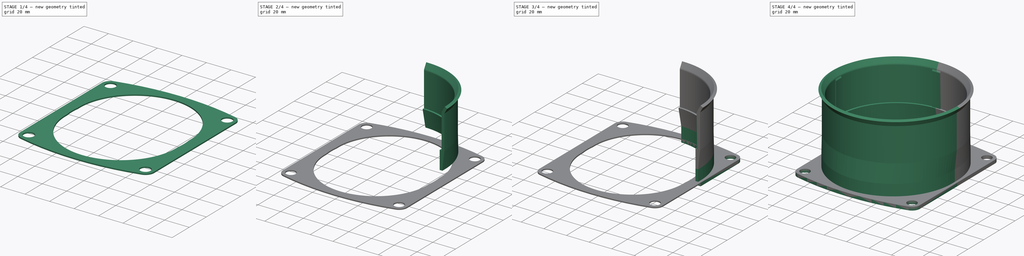
[diagram: build sequence overview — one tinted view per stage of 4, left to right]
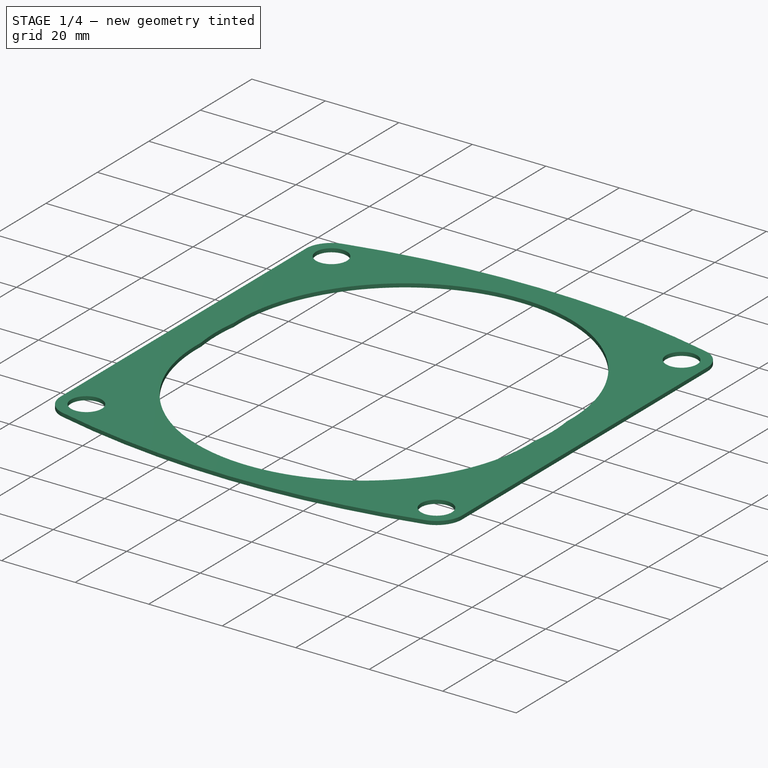
[diagram: stage 1 of 4 — iso view after this stage's code; geometry added in this stage tinted green]
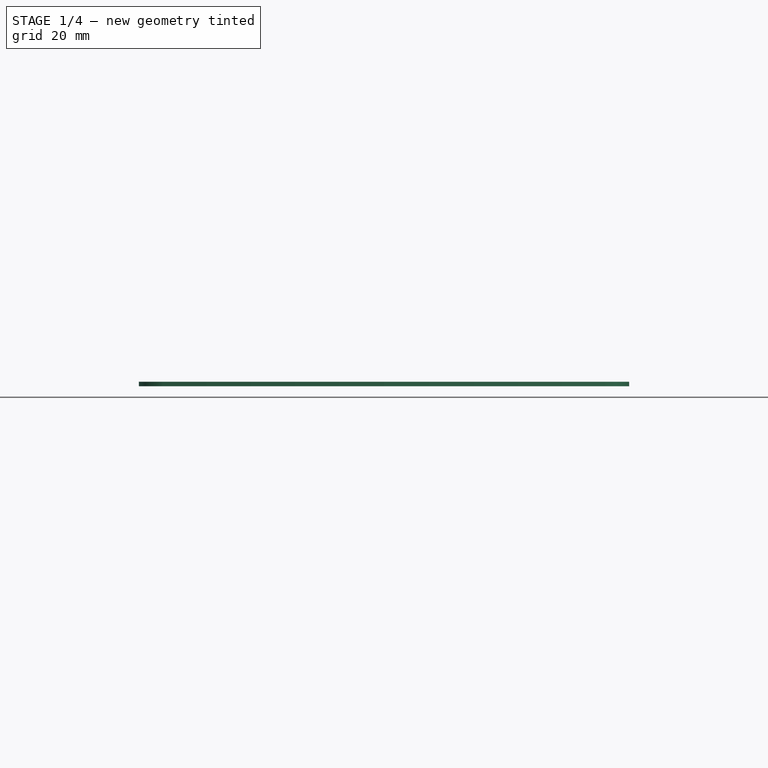
[diagram: stage 1 of 4 — front view after this stage's code; geometry added in this stage tinted green]
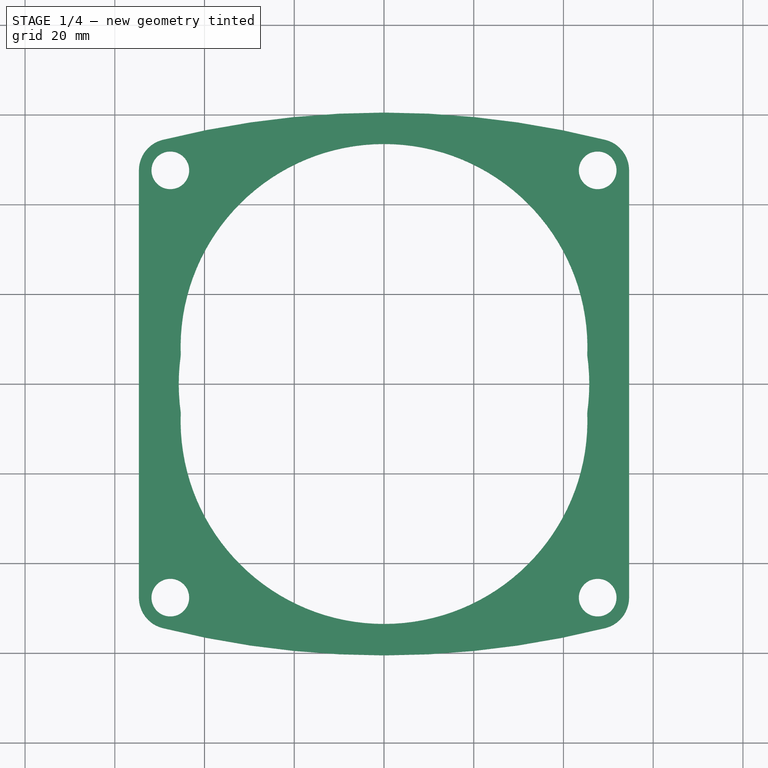
[diagram: stage 1 of 4 — top view after this stage's code; geometry added in this stage tinted green]
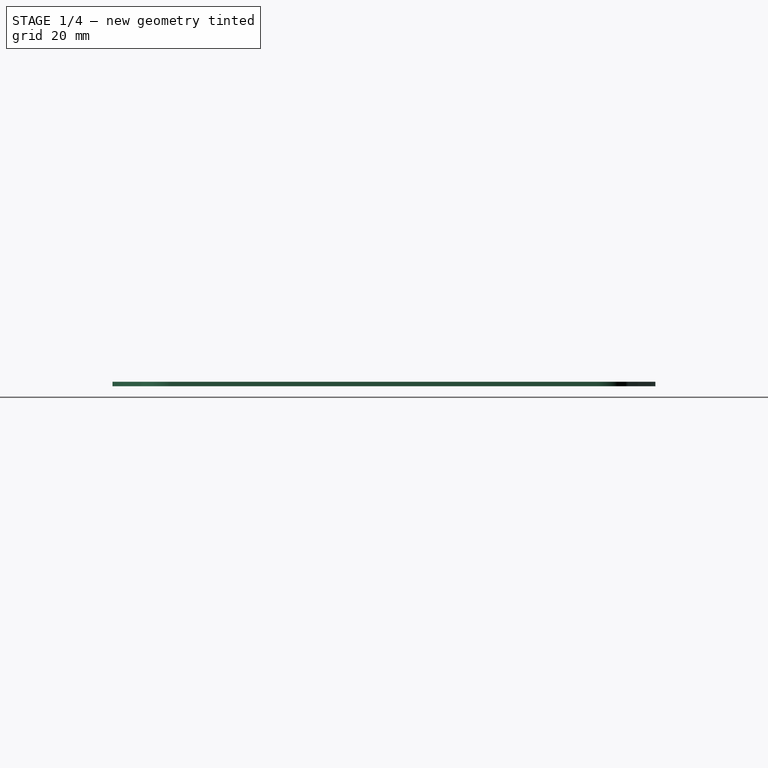
[diagram: stage 1 of 4 — right view after this stage's code; geometry added in this stage tinted green]
FCSTD DOCUMENT  (FreeCAD 0.19R24291 (Git))
Label: Фланец крышек2
License: All rights reserved
LicenseURL: http://en.wikipedia.org/wiki/All_rights_reserved
objects: Sketcher::SketchObject×8, PartDesign::Mirrored×5, PartDesign::Pad×3, PartDesign::MultiTransform×3, PartDesign::Revolution×2, PartDesign::Body×2, Spreadsheet::Sheet×1, PartDesign::AdditiveLoft×1, PartDesign::PolarPattern×1, App::Part×1
note: 31 computed .brp shape members not serialized (recipe doc carries the construction recipe); baked Part::Feature solids carry a one-line shape summary decoded from their .brp

FEATURE [Sketcher::SketchObject] Sketch006
  FullyConstrained = false
  MapMode = 5
  Placement = pos=(0,0,0) rot=(1,0,0;1.5708rad)
  Support = -> [XZ_Plane]
  sketch-geometry (4):
    g0: LineSegment StartX=69.1347 StartY=74.9252 StartZ=0 EndX=-65.0684 EndY=74.9252 EndZ=0
    g1: LineSegment StartX=-65.0684 StartY=74.9252 StartZ=0 EndX=-65.0684 EndY=-1 EndZ=0
    g2: LineSegment StartX=-65.0684 StartY=-1 StartZ=0 EndX=69.1347 EndY=-1 EndZ=0
    g3: LineSegment StartX=69.1347 StartY=-1 StartZ=0 EndX=69.1347 EndY=74.9252 EndZ=0
  constraints (9):
    c: Coincident(g0,g1)
    c: Coincident(g1,g2)
    c: Coincident(g2,g3)
    c: Coincident(g3,g0)
    c: Horizontal(g0)
    c: Horizontal(g2)
    c: Vertical(g1)
    c: Vertical(g3)
    c: Distance(g2,g-1) = 1
FEATURE [PartDesign::Body] Body
  Group = -> [Sketch,Sketch001,Sketch002,Sketch003,Revolution,Sketch004,AdditiveLoft,Pad,Sketch005,Revolution001,Pad001,MultiTransform,Mirrored,Mirrored001,MultiTransform001,Mirrored002,PolarPattern,Sketch006]
  Origin = -> Origin
  Tip = -> MultiTransform001
FEATURE [App::Part] Part
  Group = -> [Spreadsheet,Body]
  Origin = -> Origin001
FEATURE [Sketcher::SketchObject] Sketch007
  FullyConstrained = true
  MapMode = 5
  Placement = pos=(0,0,0) rot=(0,1,0;3.14159rad)
  Support = -> [XY_Plane002]
  sketch-geometry (8):
    g0: ArcOfCircle CenterX=0 CenterY=0 CenterZ=0 NormalX=0 NormalY=0 NormalZ=1 AngleXU=0 Radius=45.75 StartAngle=0 EndAngle=0.14002
    g1: ArcOfCircle CenterX=0 CenterY=8.16287 CenterZ=0 NormalX=0 NormalY=0 NormalZ=1 AngleXU=0 Radius=45.3371 StartAngle=6.24396 EndAngle=7.85398
    g2: ArcOfCircle CenterX=0 CenterY=-142.471 CenterZ=0 NormalX=0 NormalY=0 NormalZ=1 AngleXU=0 Radius=202.971 StartAngle=1.32532 EndAngle=1.5708
    g3: Circle CenterX=47.625 CenterY=47.625 CenterZ=0 NormalX=0 NormalY=0 NormalZ=1 AngleXU=0 Radius=4.2
    g4: ArcOfCircle CenterX=47.625 CenterY=47.625 CenterZ=0 NormalX=0 NormalY=0 NormalZ=1 AngleXU=0 Radius=7 StartAngle=6.28318 EndAngle=7.6085
    g5: LineSegment StartX=54.625 StartY=47.625 StartZ=0 EndX=54.625 EndY=0 EndZ=0
    g6: LineSegment StartX=54.625 StartY=0 StartZ=0 EndX=45.75 EndY=0 EndZ=0
    g7: LineSegment StartX=1.39e-14 StartY=53.5 StartZ=0 EndX=0 EndY=60.5 EndZ=0
  constraints (26):
    c: Coincident(g0,g-1)
    c: PointOnObject(g0,g-1)
    c: PointOnObject(g1,g-2)
    c: Coincident(g1,g0)
    c: PointOnObject(g1,g-2)
    c: Diameter(g0) = 91.5
    c: Distance(g0,g-1) = 6.385
    c: Distance(g0,g1) = 53.5
    c: PointOnObject(g2,g-2)
    c: PointOnObject(g2,g-2)
    c: DistanceX(g3) = 47.625
    c: DistanceY(g3) = 47.625
    c: Diameter(g3) = 8.4
    c: Distance(g2,g0) = 60.5
    c: Coincident(g4,g3)
    c: Coincident(g4,g2)
    c: Coincident(g5,g4)
    c: PointOnObject(g5,g-1)
    c: Vertical(g5)
    c: Coincident(g6,g5)
    c: Coincident(g6,g0)
    c: Diameter(g4) = 14
    c: Tangent(g4,g2)
    c: Tangent(g4,g5)
    c: Coincident(g7,g1)
    c: Coincident(g7,g2)
FEATURE [PartDesign::Pad] Pad002
  Direction = (1,1,1)
  Length = 1
  Length2 = 100
  Profile = -> Sketch007
  Type = 0
FEATURE [PartDesign::Mirrored] Mirrored003
  MirrorPlane = -> Sketch007 [V_Axis]
FEATURE [PartDesign::Mirrored] Mirrored004
  MirrorPlane = -> Sketch007 [H_Axis]
FEATURE [PartDesign::MultiTransform] MultiTransform002
  BaseFeature = -> Pad002
  Originals = -> [Pad002]
  Transformations = -> [Mirrored003,Mirrored004]
FEATURE [PartDesign::Body] Body001
  Group = -> [Sketch007,Pad002,MultiTransform002,Mirrored003,Mirrored004]
  Origin = -> Origin002
  Tip = -> MultiTransform002
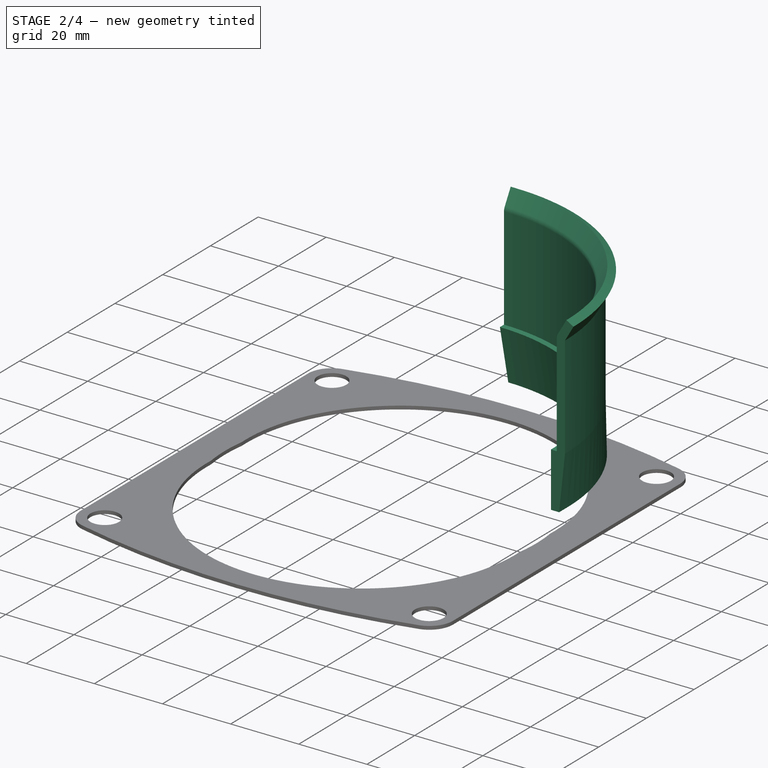
[diagram: stage 2 of 4 — iso view after this stage's code; geometry added in this stage tinted green]
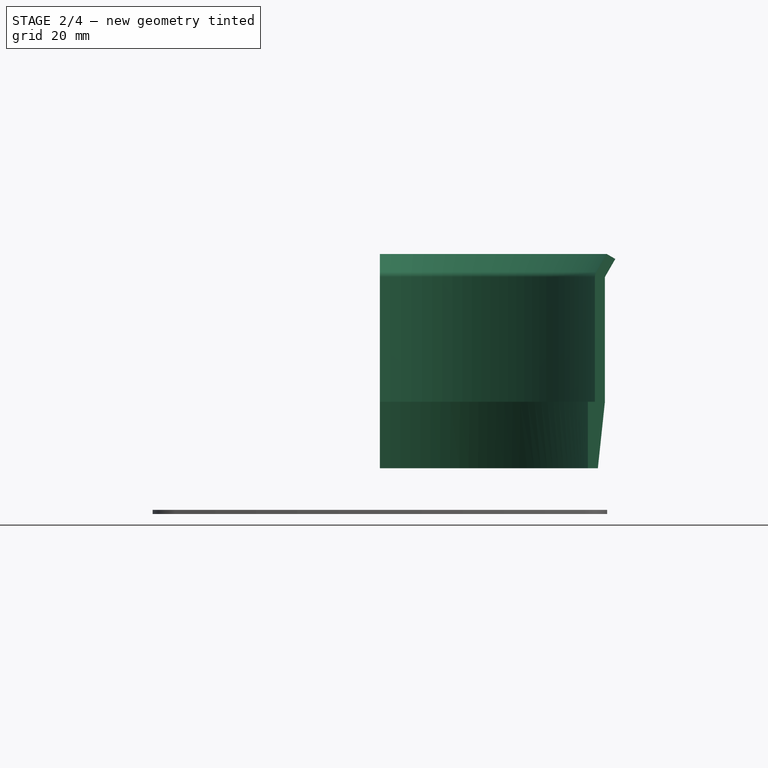
[diagram: stage 2 of 4 — front view after this stage's code; geometry added in this stage tinted green]
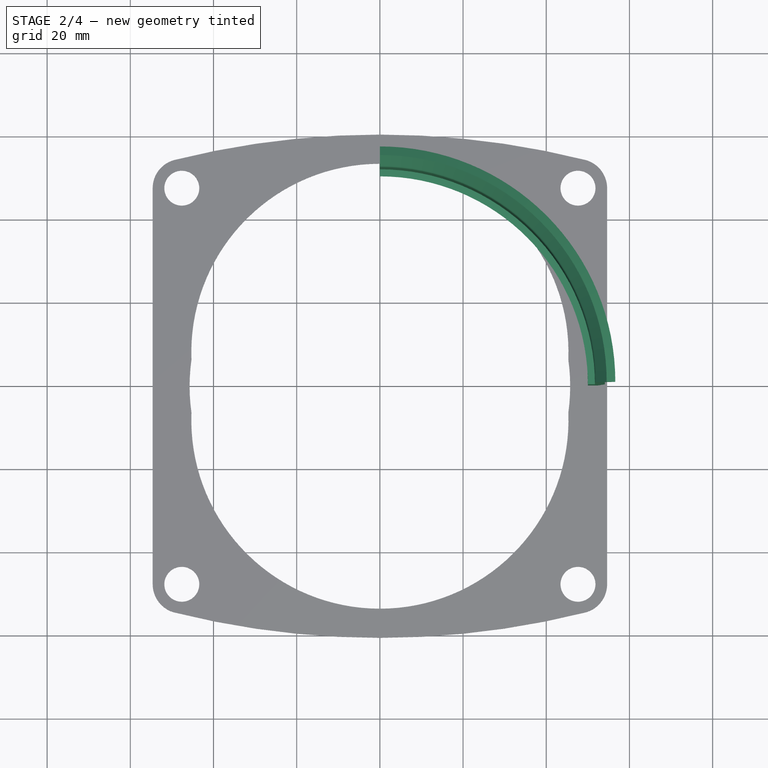
[diagram: stage 2 of 4 — top view after this stage's code; geometry added in this stage tinted green]
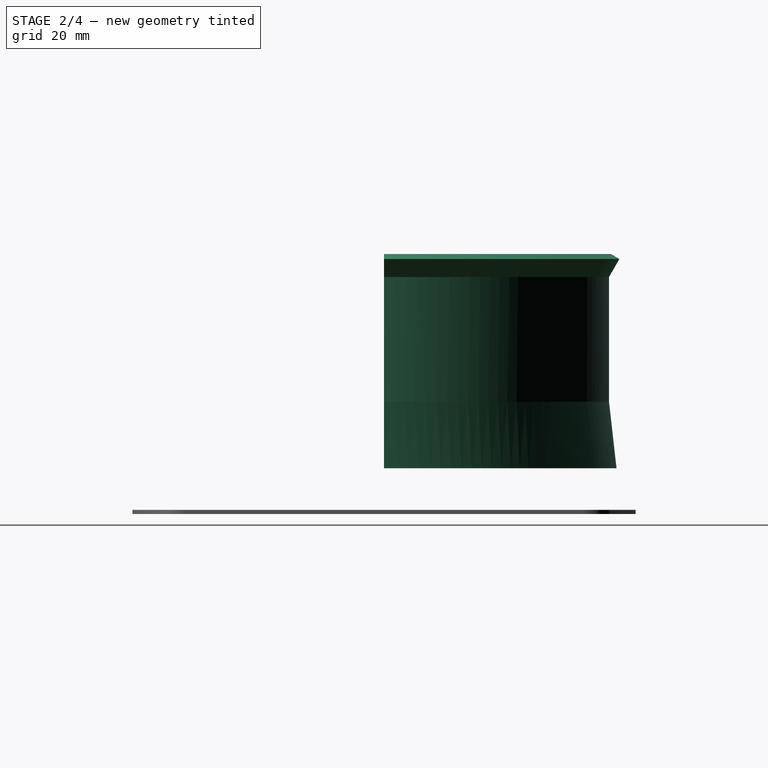
[diagram: stage 2 of 4 — right view after this stage's code; geometry added in this stage tinted green]
FEATURE [Sketcher::SketchObject] Sketch
  FullyConstrained = false
  MapMode = 5
  Support = -> [XY_Plane]
  expr: Constraints[12] = Spreadsheet.oval_d1 / 2
  sketch-geometry (9):
    g0: LineSegment StartX=0 StartY=0 StartZ=0 EndX=47.1343 EndY=47.1343 EndZ=0
    g1: Circle CenterX=47.625 CenterY=47.625 CenterZ=0 NormalX=0 NormalY=0 NormalZ=1 AngleXU=0 Radius=4.2
    g2: ArcOfCircle CenterX=0 CenterY=0 CenterZ=0 NormalX=0 NormalY=0 NormalZ=1 AngleXU=0 Radius=45.25 StartAngle=0 EndAngle=0.279883
    g3: ArcOfCircle CenterX=0 CenterY=9.93521 CenterZ=0 NormalX=0 NormalY=0 NormalZ=1 AngleXU=0 Radius=43.5648 StartAngle=0.058907 EndAngle=1.5708
    g4: ArcOfCircle CenterX=47.625 CenterY=47.625 CenterZ=0 NormalX=0 NormalY=0 NormalZ=1 AngleXU=0 Radius=7 StartAngle=6.28319 EndAngle=7.6085
    g5: ArcOfCircle CenterX=0 CenterY=-142.471 CenterZ=0 NormalX=0 NormalY=0 NormalZ=1 AngleXU=0 Radius=202.971 StartAngle=1.32532 EndAngle=1.5708
    g6: LineSegment StartX=54.625 StartY=47.625 StartZ=0 EndX=54.625 EndY=0 EndZ=0
    g7: LineSegment StartX=45.25 StartY=0 StartZ=0 EndX=54.625 EndY=0 EndZ=0
    g8: LineSegment StartX=0 StartY=53.5 StartZ=0 EndX=0 EndY=60.5 EndZ=0
  constraints (28):
    c: Coincident(g0,g-1)
    c: Angle(g-1,g0) = 0.785398
    c: PointOnObject(g1,g0)
    c: Diameter(g1) = 8.4
    c: DistanceY(g-1,g1) = 47.625
    c: Coincident(g2,g-1)
    c: PointOnObject(g2,g-1)
    c: Diameter(g2) = 90.5
    c: DistanceY(g2,g2) = 12.5
    c: PointOnObject(g3,g-2)
    c: Coincident(g3,g2)
    c: PointOnObject(g3,g-2)
    c: Distance(g2,g3) = 53.5
    c: Coincident(g4,g1)
    c: PointOnObject(g5,g-2)
    c: Coincident(g5,g4)
    c: PointOnObject(g5,g-2)
    c: Tangent(g5,g4)
    c: Coincident(g6,g4)
    c: PointOnObject(g6,g-1)
    c: Vertical(g6)
    c: Coincident(g7,g2)
    c: Coincident(g7,g6)
    c: Coincident(g8,g3)
    c: Coincident(g8,g5)
    c: Tangent(g4,g6)
    c: Diameter(g4) = 14
    c: Distance(g8) = 7
FEATURE [Spreadsheet::Sheet] Spreadsheet
  cells = A1=Труба; B1(tube_outer_radius)=102; C1(tube_inner_radius)=100; D1(tube_height)=30; B2=Внешний диаметр; C2=Внутренний диаметр; D2=Высота; A3=Выступы; B3(ledge_width)=4; C3(ledge_length)=0.7; B4=Ширина; C4=Длина; A5=Овал; B5(oval_d1)=107; C5(oval_d2)=100; D5(oval_transitoin_height)=15; E5(oval_height)=10; B6=диаметр1; C6=диаметр2; D6=Высота пeрехода; E6=Высота; A15=Общее; B15(wallThickness)=2.4; B16=Толщина стенки
FEATURE [Sketcher::SketchObject] Sketch001
  AttachmentOffset = pos=(0,0,10) rot=(0,0,1;0rad)
  FullyConstrained = true
  MapMode = 5
  Placement = pos=(0,0,10) rot=(0,0,1;0rad)
  Support = -> [XY_Plane]
  expr: Constraints[16] = Spreadsheet.wallThickness
  expr: Constraints[17] = Spreadsheet.oval_d2
  expr: Constraints[18] = Spreadsheet.oval_d1 / 2
  expr: .AttachmentOffset.Base.z = Spreadsheet.oval_height
  sketch-geometry (6):
    g0: ArcOfCircle CenterX=0 CenterY=3.5 CenterZ=0 NormalX=0 NormalY=0 NormalZ=1 AngleXU=0 Radius=52.4 StartAngle=1.87457e-06 EndAngle=1.5708
    g1: ArcOfCircle CenterX=0 CenterY=3.5 CenterZ=0 NormalX=0 NormalY=0 NormalZ=1 AngleXU=0 Radius=50 StartAngle=1.78708e-06 EndAngle=1.5708
    g2: LineSegment StartX=0 StartY=53.5 StartZ=0 EndX=0 EndY=55.9 EndZ=0
    g3: LineSegment StartX=50 StartY=0 StartZ=0 EndX=50 EndY=3.50009 EndZ=0
    g4: LineSegment StartX=52.4 StartY=0 StartZ=0 EndX=52.4 EndY=3.5001 EndZ=0
    g5: LineSegment StartX=50 StartY=0 StartZ=0 EndX=52.4 EndY=0 EndZ=0
  constraints (19):
    c: PointOnObject(g0,g-2)
    c: PointOnObject(g0,g-2)
    c: Coincident(g1,g0)
    c: PointOnObject(g1,g-2)
    c: Coincident(g2,g1)
    c: Coincident(g2,g0)
    c: PointOnObject(g3,g-1)
    c: Coincident(g3,g1)
    c: Vertical(g3)
    c: PointOnObject(g4,g-1)
    c: Coincident(g4,g0)
    c: Vertical(g4)
    c: Tangent(g0,g4)
    c: Tangent(g1,g3)
    c: Coincident(g5,g3)
    c: Coincident(g5,g4)
    c: Distance(g2) = 2.4
    c: Diameter(g1) = 100
    c: Distance(g-1,g1) = 53.5
FEATURE [Sketcher::SketchObject] Sketch002
  AttachmentOffset = pos=(0,0,25) rot=(0,0,1;0rad)
  FullyConstrained = false
  MapMode = 5
  Placement = pos=(0,0,25) rot=(0,0,1;0rad)
  Support = -> [XY_Plane]
  expr: Constraints[4] = Spreadsheet.wallThickness
  expr: .AttachmentOffset.Base.z = Spreadsheet.oval_height + Spreadsheet.oval_transitoin_height
  expr: Constraints[15] = Spreadsheet.oval_d2
  sketch-geometry (6):
    g0: LineSegment StartX=50 StartY=0 StartZ=0 EndX=52.4 EndY=0 EndZ=0
    g1: LineSegment StartX=3.1e-15 StartY=50 StartZ=0 EndX=3.2e-15 EndY=52.4 EndZ=0
    g2: ArcOfCircle CenterX=0 CenterY=0 CenterZ=0 NormalX=0 NormalY=0 NormalZ=1 AngleXU=0 Radius=50 StartAngle=0.089707 EndAngle=1.5708
    g3: ArcOfCircle CenterX=0 CenterY=0 CenterZ=0 NormalX=0 NormalY=0 NormalZ=1 AngleXU=0 Radius=50 StartAngle=0 EndAngle=0.089707
    g4: ArcOfCircle CenterX=0 CenterY=0 CenterZ=0 NormalX=0 NormalY=0 NormalZ=1 AngleXU=0 Radius=52.4 StartAngle=0.085625 EndAngle=1.5708
    g5: ArcOfCircle CenterX=0 CenterY=0 CenterZ=0 NormalX=0 NormalY=0 NormalZ=1 AngleXU=0 Radius=52.4 StartAngle=0 EndAngle=0.085625
  constraints (16):
    c: PointOnObject(g0,g-1)
    c: PointOnObject(g1,g-2)
    c: PointOnObject(g0,g-1)
    c: PointOnObject(g1,g-2)
    c: Distance(g1) = 2.4
    c: Coincident(g2,g-1)
    c: Coincident(g2,g1)
    c: Coincident(g3,g2)
    c: Coincident(g3,g2)
    c: Coincident(g3,g0)
    c: Coincident(g4,g2)
    c: Coincident(g4,g1)
    c: Coincident(g5,g2)
    c: Coincident(g5,g4)
    c: Coincident(g5,g0)
    c: Diameter(g2) = 100
FEATURE [Sketcher::SketchObject] Sketch003
  FullyConstrained = true
  MapMode = 5
  Placement = pos=(0,0,0) rot=(1,0,0;1.5708rad)
  Support = -> [XZ_Plane]
  expr: Constraints[11] = (Spreadsheet.tube_outer_radius + Spreadsheet.ledge_length * 2) / 2
  expr: Constraints[12] = Spreadsheet.oval_height + Spreadsheet.oval_transitoin_height
  expr: Constraints[10] = Spreadsheet.tube_inner_radius / 2
  expr: Constraints[13] = Spreadsheet.wallThickness
  expr: Constraints[20] = Spreadsheet.tube_height
  expr: Constraints[22] = 150
  sketch-geometry (9):
    g0: LineSegment StartX=52.05 StartY=25 StartZ=0 EndX=50 EndY=26 EndZ=0
    g1: LineSegment StartX=50 StartY=26 StartZ=0 EndX=51.7 EndY=26 EndZ=0
    g2: LineSegment StartX=51.7 StartY=26 StartZ=0 EndX=51.7 EndY=56 EndZ=0
    g3: LineSegment StartX=52.0215 StartY=57.2 StartZ=0 EndX=54.5215 EndY=61.5301 EndZ=0
    g4: LineSegment StartX=54.5215 StartY=61.5301 StartZ=0 EndX=56.6 EndY=60.3301 EndZ=0
    g5: LineSegment StartX=56.6 StartY=60.3301 StartZ=0 EndX=54.1 EndY=56 EndZ=0
    g6: LineSegment StartX=54.1 StartY=56 StartZ=0 EndX=54.1 EndY=26 EndZ=0
    g7: LineSegment StartX=54.1 StartY=26 StartZ=0 EndX=52.05 EndY=25 EndZ=0
    g8: ArcOfCircle CenterX=54.1 CenterY=56 CenterZ=0 NormalX=0 NormalY=0 NormalZ=1 AngleXU=0 Radius=2.4 StartAngle=2.618 EndAngle=3.14159
  constraints (27):
    c: Coincident(g0,g1)
    c: Horizontal(g1)
    c: Coincident(g1,g2)
    c: Vertical(g2)
    c: Coincident(g3,g4)
    c: Coincident(g4,g5)
    c: Coincident(g5,g6)
    c: Vertical(g6)
    c: Coincident(g6,g7)
    c: Coincident(g7,g0)
    c: Distance(g0,g-2) = 50
    c: Distance(g1,g-2) = 51.7
    c: Distance(g0,g-1) = 25
    c: Distance(g1,g6) = 2.4
    c: Coincident(g8,g5)
    c: Coincident(g8,g2)
    c: Coincident(g8,g3)
    c: Tangent(g2,g8)
    c: Parallel(g5,g3)
    c: DistanceY(g0,g0) = 1
    c: Distance(g2) = 30
    c: Perpendicular(g4,g3)
    c: Angle(g2,g3) = 2.61799
    c: Tangent(g3,g8)
    c: Distance(g5) = 5
    c: Equal(g0,g7)
    c: Horizontal(g1,g6)
FEATURE [PartDesign::Revolution] Revolution
  Angle = 90
  Axis = (0,2e-16,1)
  Base = (0,0,0)
  Placement = pos=(0,0,0) rot=(1,0,0;1.5708rad)
  Profile = -> Sketch003
  ReferenceAxis = -> Sketch003 [V_Axis]
FEATURE [Sketcher::SketchObject] Sketch004
  AttachmentOffset = pos=(0,0,26) rot=(0,0,1;0rad)
  FullyConstrained = false
  MapMode = 5
  Placement = pos=(0,0,26) rot=(0,0,1;0rad)
  Support = -> [XY_Plane]
  expr: Constraints[2] = Spreadsheet.oval_d2
  expr: Constraints[7] = Spreadsheet.tube_outer_radius + Spreadsheet.ledge_length * 2 + Spreadsheet.wallThickness * 2
  expr: .AttachmentOffset.Base.z = Spreadsheet.oval_height + Spreadsheet.oval_transitoin_height + 1
  sketch-geometry (6):
    g0: ArcOfCircle CenterX=0 CenterY=0 CenterZ=0 NormalX=0 NormalY=0 NormalZ=1 AngleXU=0 Radius=50 StartAngle=0.0894474 EndAngle=1.5708
    g1: ArcOfCircle CenterX=0 CenterY=0 CenterZ=0 NormalX=0 NormalY=0 NormalZ=1 AngleXU=0 Radius=54.1 StartAngle=0.0853458 EndAngle=1.5708
    g2: LineSegment StartX=0 StartY=50 StartZ=0 EndX=3.3e-15 EndY=54.1 EndZ=0
    g3: ArcOfCircle CenterX=0 CenterY=0 CenterZ=0 NormalX=0 NormalY=0 NormalZ=1 AngleXU=0 Radius=50 StartAngle=0 EndAngle=0.0894474
    g4: ArcOfCircle CenterX=0 CenterY=0 CenterZ=0 NormalX=0 NormalY=0 NormalZ=1 AngleXU=0 Radius=54.1 StartAngle=0 EndAngle=0.0853458
    g5: LineSegment StartX=50 StartY=0 StartZ=0 EndX=54.1 EndY=0 EndZ=0
  constraints (16):
    c: Coincident(g0,g-1)
    c: PointOnObject(g0,g-2)
    c: Diameter(g0) = 100
    c: Coincident(g1,g0)
    c: PointOnObject(g1,g-2)
    c: Coincident(g2,g0)
    c: Coincident(g2,g1)
    c: Diameter(g1) = 108.2
    c: Coincident(g3,g0)
    c: Coincident(g3,g0)
    c: PointOnObject(g3,g-1)
    c: Coincident(g4,g0)
    c: Coincident(g4,g1)
    c: PointOnObject(g4,g-1)
    c: Coincident(g5,g3)
    c: Coincident(g5,g4)
FEATURE [PartDesign::AdditiveLoft] AdditiveLoft
  BaseFeature = -> Revolution
  Closed = false
  Placement = pos=(0,0,0) rot=(1,0,0;1.5708rad)
  Profile = -> Sketch004
  Ruled = false
  Sections = -> [Sketch001]
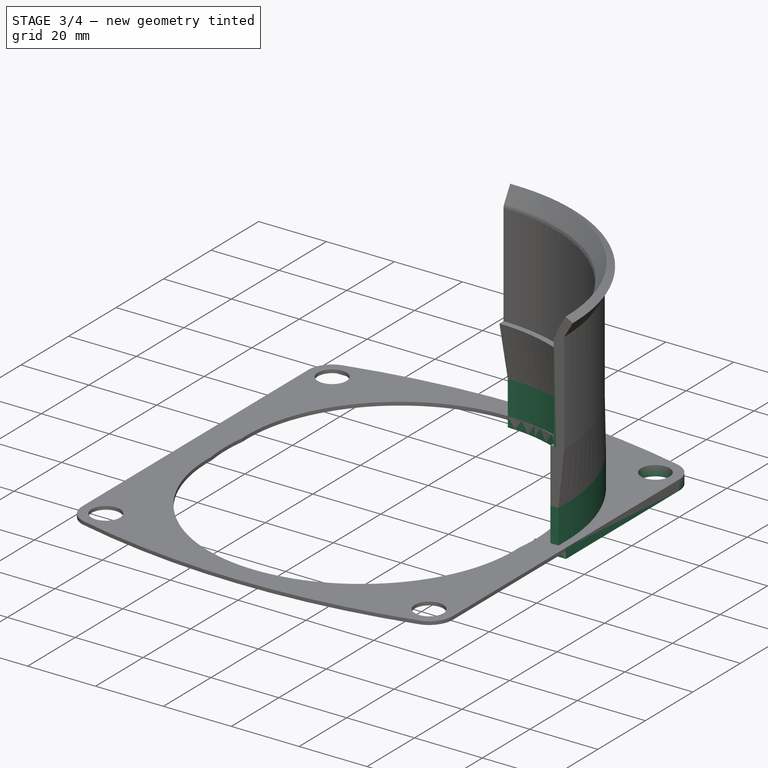
[diagram: stage 3 of 4 — iso view after this stage's code; geometry added in this stage tinted green]
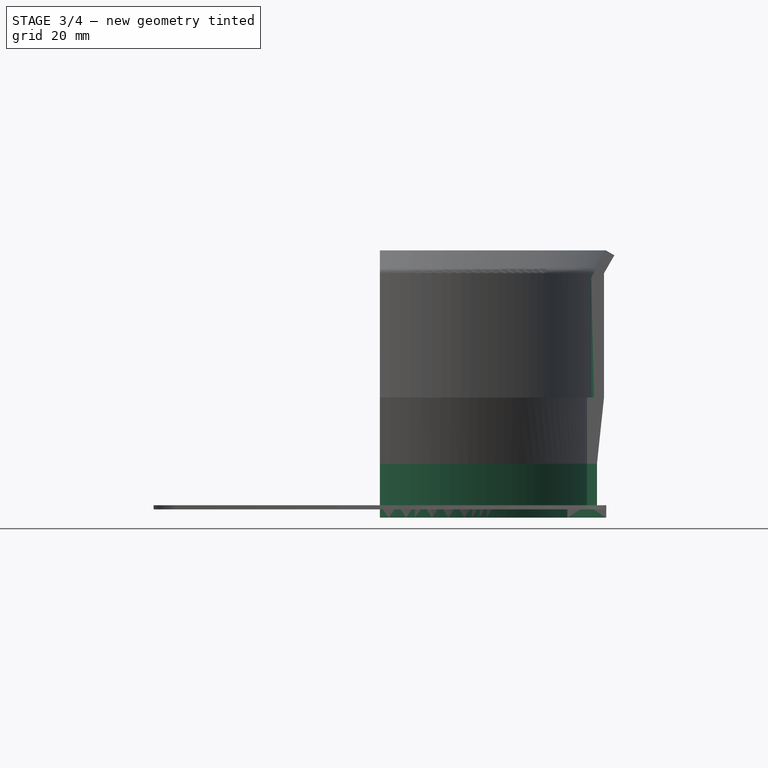
[diagram: stage 3 of 4 — front view after this stage's code; geometry added in this stage tinted green]
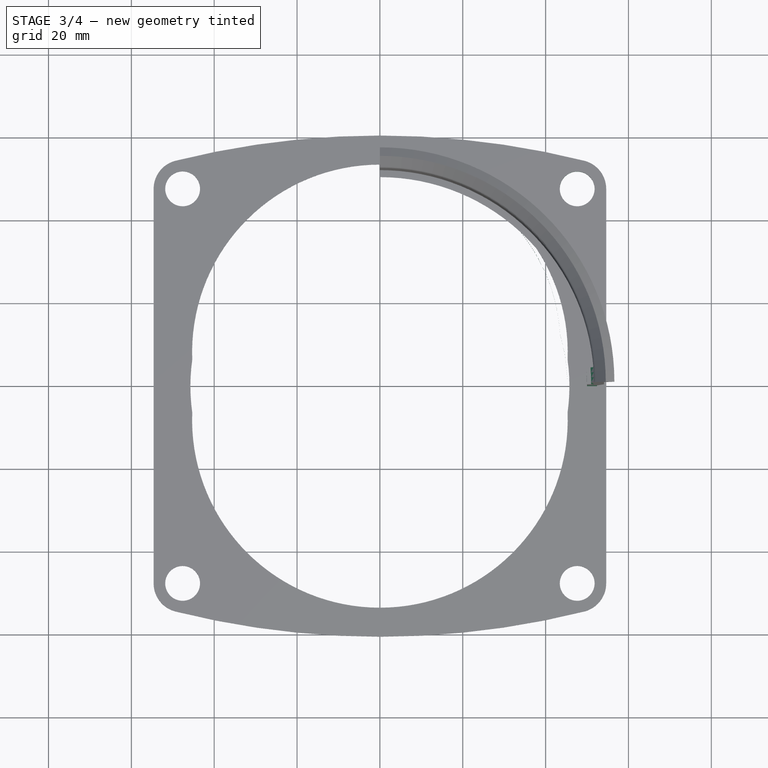
[diagram: stage 3 of 4 — top view after this stage's code; geometry added in this stage tinted green]
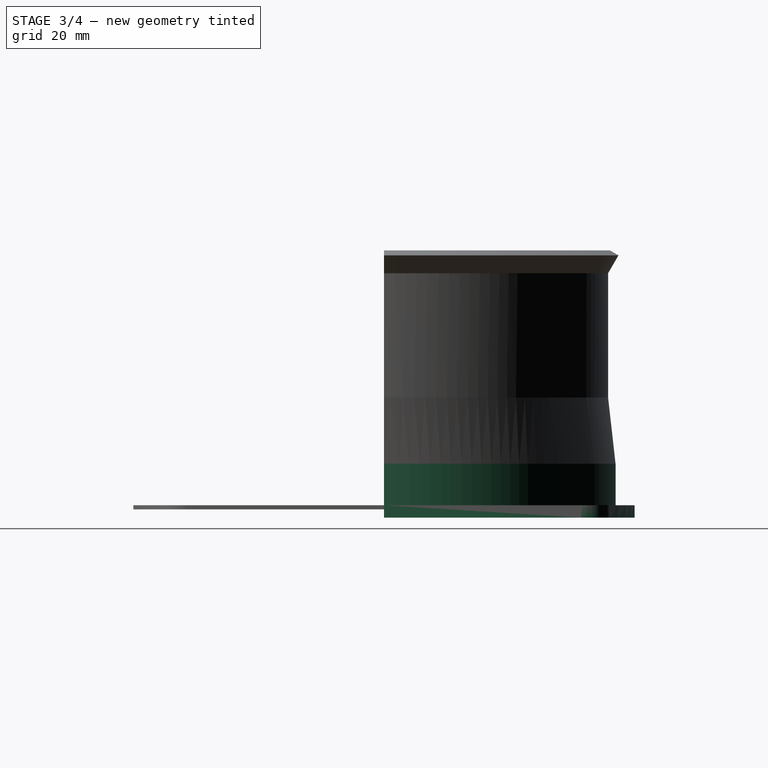
[diagram: stage 3 of 4 — right view after this stage's code; geometry added in this stage tinted green]
FEATURE [PartDesign::Pad] Pad
  BaseFeature = -> AdditiveLoft
  Direction = (1,1,1)
  Length = 10
  Length2 = 100
  Placement = pos=(0,0,0) rot=(1,0,0;1.5708rad)
  Profile = -> Sketch001
  Reversed = true
  Type = 0
  expr: Length = Spreadsheet.oval_height
FEATURE [Sketcher::SketchObject] Sketch005
  FullyConstrained = true
  MapMode = 5
  Placement = pos=(0,0,0) rot=(1,0,0;1.5708rad)
  Support = -> [XZ_Plane]
  expr: Constraints[7] = Spreadsheet.oval_height + Spreadsheet.oval_transitoin_height + 1
  expr: Constraints[8] = Spreadsheet.ledge_length
  expr: Constraints[9] = Spreadsheet.tube_outer_radius / 2
  expr: Constraints[11] = Spreadsheet.tube_height
  sketch-geometry (4):
    g0: LineSegment StartX=51 StartY=26 StartZ=0 EndX=51.7 EndY=26 EndZ=0
    g1: LineSegment StartX=51.7 StartY=26 StartZ=0 EndX=51.7 EndY=56 EndZ=0
    g2: LineSegment StartX=51.7 StartY=56 StartZ=0 EndX=51 EndY=54.7876 EndZ=0
    g3: LineSegment StartX=51 StartY=54.7876 StartZ=0 EndX=51 EndY=26 EndZ=0
  constraints (12):
    c: Coincident(g0,g1)
    c: Coincident(g1,g2)
    c: Coincident(g2,g3)
    c: Coincident(g3,g0)
    c: Horizontal(g0)
    c: Vertical(g1)
    c: Vertical(g3)
    c: Distance(g0,g-1) = 26
    c: Distance(g0) = 0.7
    c: Distance(g0,g-2) = 51
    c: Angle(g2,g1) = 0.523599
    c: Distance(g1) = 30
FEATURE [PartDesign::Revolution] Revolution001
  Angle = 4
  Axis = (0,2e-16,1)
  Base = (0,0,0)
  BaseFeature = -> Pad
  Placement = pos=(0,0,0) rot=(1,0,0;1.5708rad)
  Profile = -> Sketch005
  ReferenceAxis = -> Sketch005 [V_Axis]
  expr: Angle = 4
FEATURE [PartDesign::Pad] Pad001
  BaseFeature = -> Revolution001
  Direction = (1,1,1)
  Length = 3
  Length2 = 100
  Placement = pos=(0,0,0) rot=(1,0,0;1.5708rad)
  Profile = -> Sketch
  Reversed = true
  Type = 0
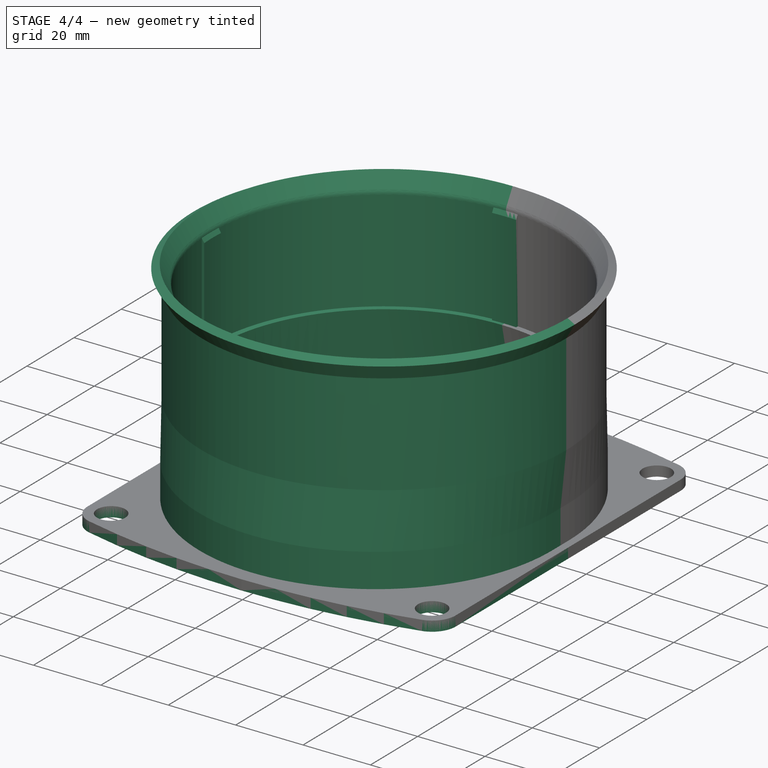
[diagram: stage 4 of 4 — iso view after this stage's code; geometry added in this stage tinted green]
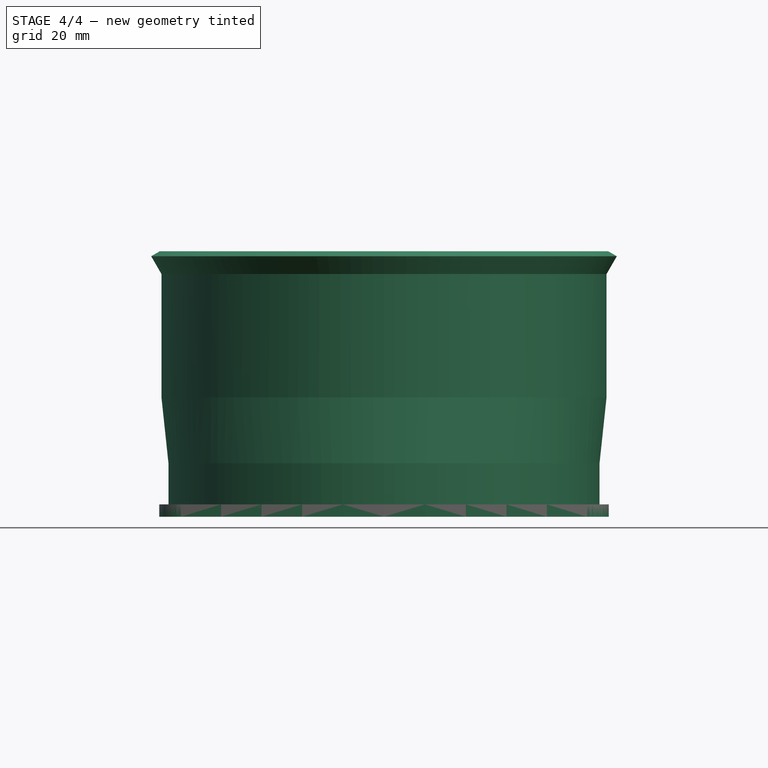
[diagram: stage 4 of 4 — front view after this stage's code; geometry added in this stage tinted green]
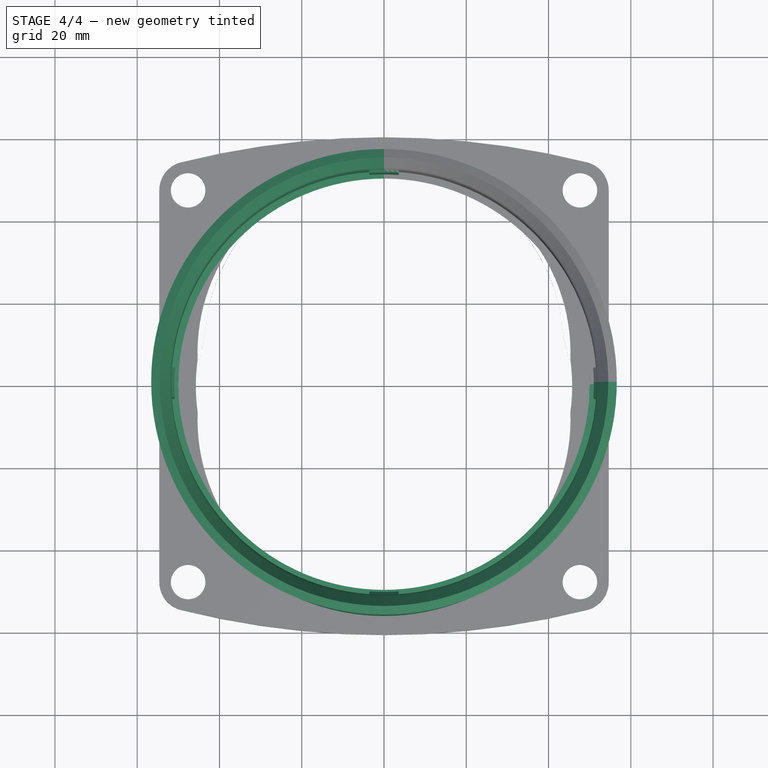
[diagram: stage 4 of 4 — top view after this stage's code; geometry added in this stage tinted green]
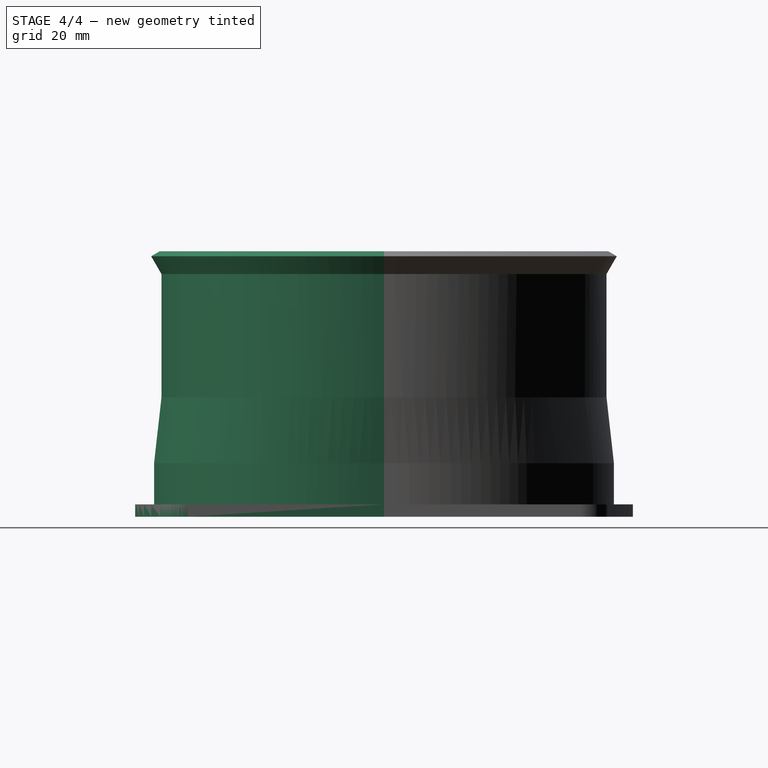
[diagram: stage 4 of 4 — right view after this stage's code; geometry added in this stage tinted green]
FEATURE [PartDesign::Mirrored] Mirrored
  MirrorPlane = -> Sketch003 [V_Axis]
  Placement = pos=(0,0,0) rot=(1,0,0;1.5708rad)
FEATURE [PartDesign::Mirrored] Mirrored001
  MirrorPlane = -> XZ_Plane
  Placement = pos=(0,0,0) rot=(1,0,0;1.5708rad)
FEATURE [PartDesign::MultiTransform] MultiTransform
  BaseFeature = -> Pad001
  Originals = -> [Revolution,AdditiveLoft,Pad,Pad001]
  Placement = pos=(0,0,0) rot=(1,0,0;1.5708rad)
  Transformations = -> [Mirrored,Mirrored001]
FEATURE [PartDesign::Mirrored] Mirrored002
  MirrorPlane = -> XZ_Plane
  Placement = pos=(0,0,0) rot=(1,0,0;1.5708rad)
FEATURE [PartDesign::PolarPattern] PolarPattern
  Angle = 360
  Axis = -> Sketch005 [V_Axis]
  Occurrences = 4
  Placement = pos=(0,0,0) rot=(1,0,0;1.5708rad)
FEATURE [PartDesign::MultiTransform] MultiTransform001
  BaseFeature = -> MultiTransform
  Originals = -> [Revolution001]
  Placement = pos=(0,0,0) rot=(1,0,0;1.5708rad)
  Transformations = -> [Mirrored002,PolarPattern]
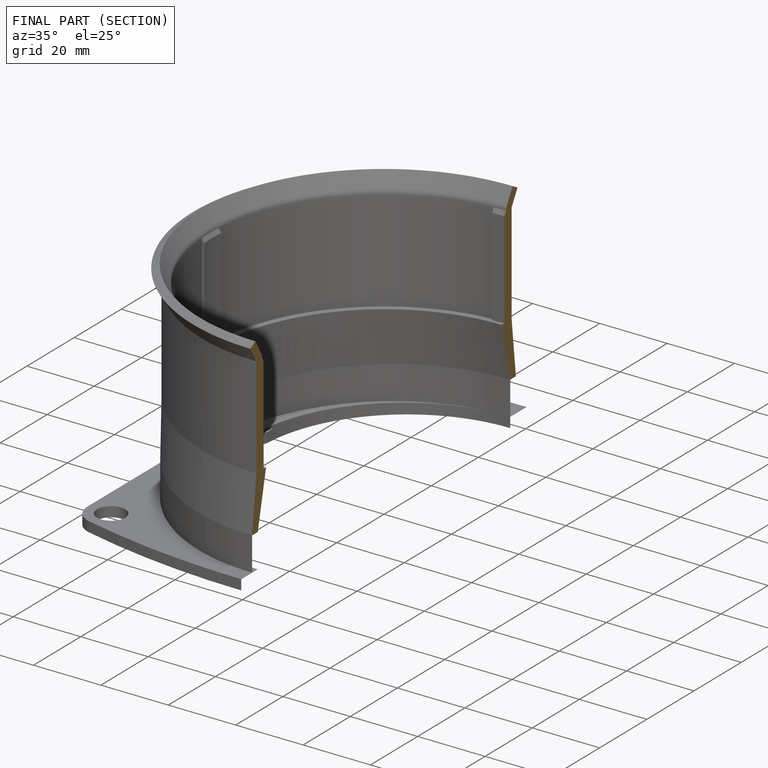
[diagram: finished part — half-section view (interior)]
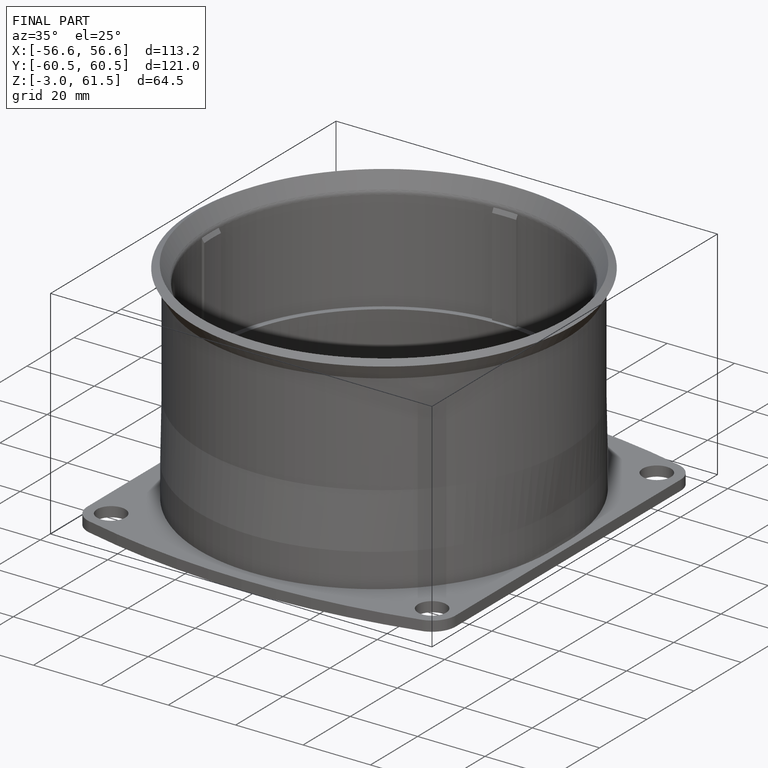
[diagram: finished part — iso view with bounding-box wireframe]
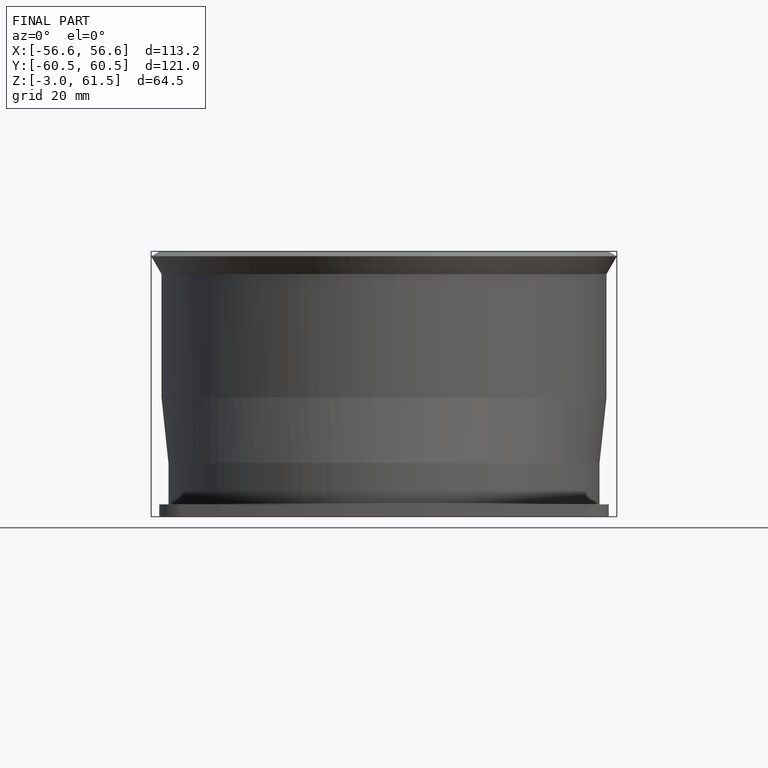
[diagram: finished part — front view with bounding-box wireframe]
